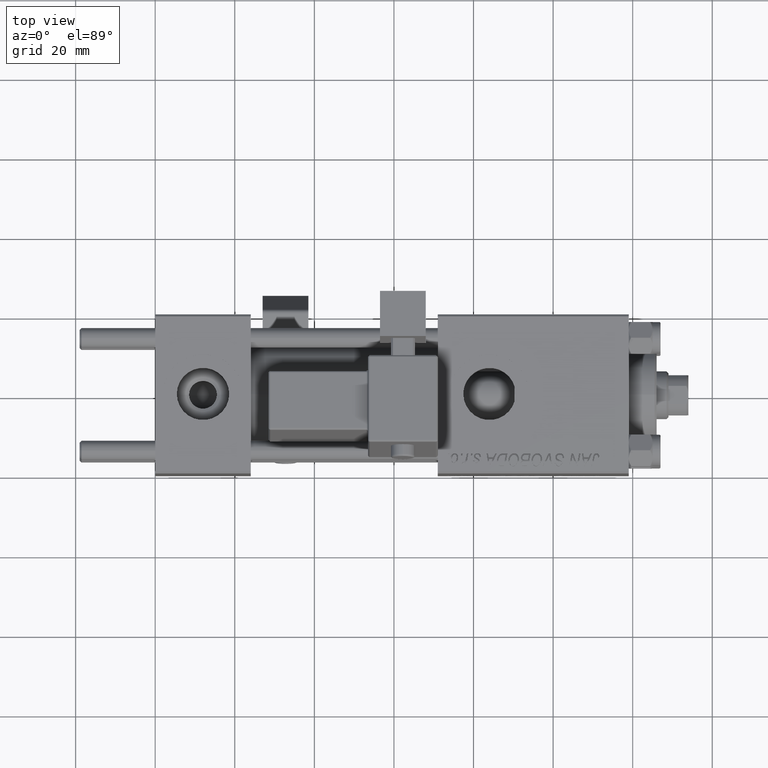
[diagram: clean part render]
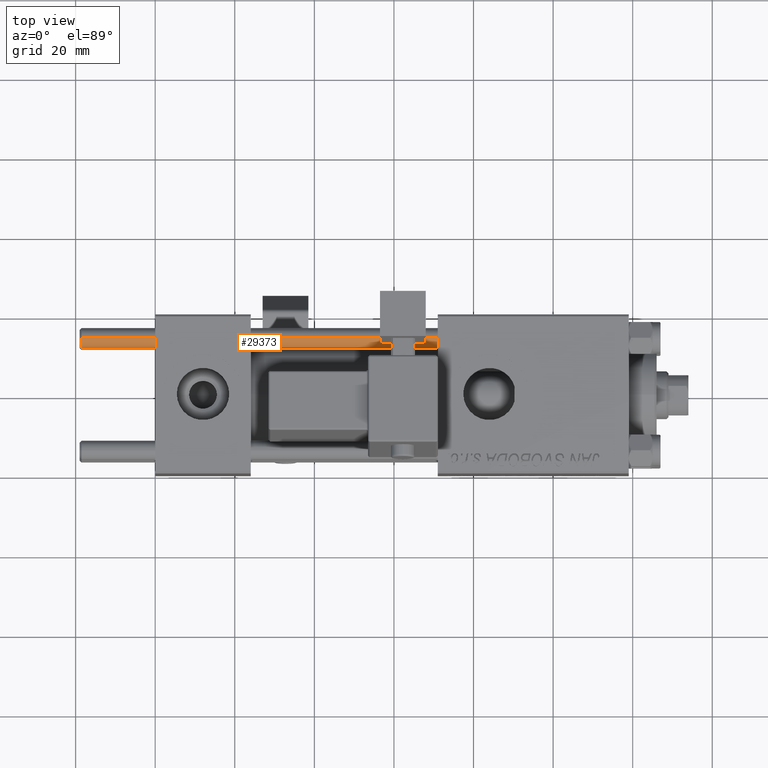
[diagram: same view with one face highlighted and labeled with its STEP entity id]
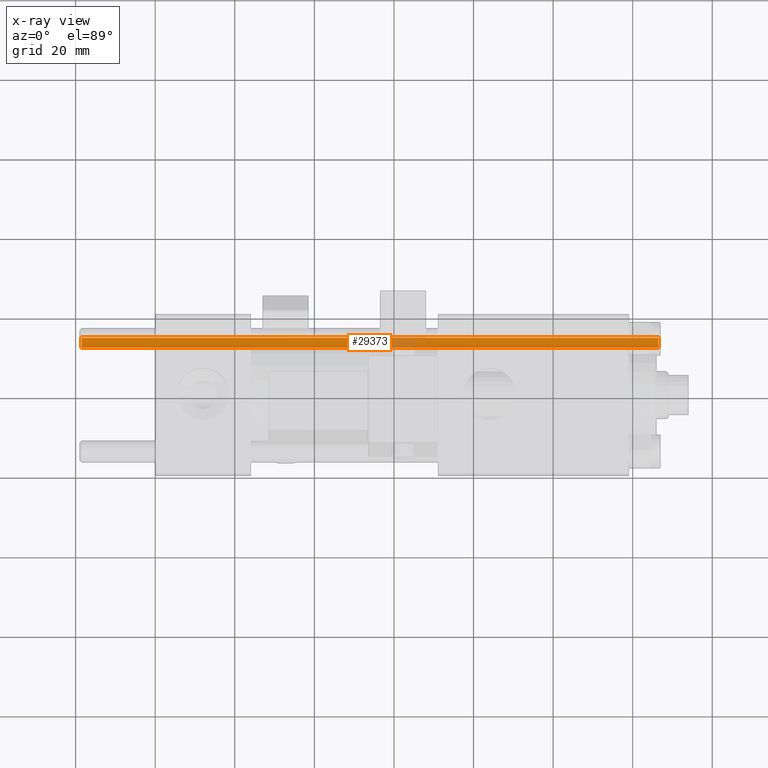
[diagram: x-ray of the same camera — body ghosted, the highlighted face saturated]
A machine part, top view. The second image highlights one B-rep face of the part: STEP entity #29373.
The next image is the same camera in x-ray: the body ghosted, the highlighted face saturated — about 4% of this face is hidden behind the body in this view.
In plain terms, the highlighted cylindrical surface (edge-blend (fillet) strip) has radius 2.5 mm, axis along (-1, -0, -0).
Its self-contained STEP definition (entity closure, byte-faithful):
#635 = ORIENTED_EDGE ( 'NONE', *, *, #24084, .T. ) ;
#786 = DIRECTION ( 'NONE',  ( -1.000000000000000000, 0.000000000000000000, 0.000000000000000000 ) ) ;
#2686 = VECTOR ( 'NONE', #35498, 1000.000000000000000 ) ;
#2826 = AXIS2_PLACEMENT_3D ( 'NONE', #5378, #49868, #34055 ) ;
#4716 = CARTESIAN_POINT ( 'NONE',  ( 0.000000000000000000, 0.000000000000000000, 146.0000000000000000 ) ) ;
#5378 = CARTESIAN_POINT ( 'NONE',  ( 0.000000000000000000, 0.000000000000000000, 145.5000000000000284 ) ) ;
#6456 = EDGE_CURVE ( 'NONE', #39188, #28678, #45576, .T. ) ;
#7448 = CARTESIAN_POINT ( 'NONE',  ( 2.500000000000000000, 3.061616997868383141E-16, 0.5000000000000559552 ) ) ;
#8676 = FACE_OUTER_BOUND ( 'NONE', #37579, .T. ) ;
#9233 = DIRECTION ( 'NONE',  ( -0.000000000000000000, -0.000000000000000000, -1.000000000000000000 ) ) ;
#9465 = CARTESIAN_POINT ( 'NONE',  ( 0.000000000000000000, 0.000000000000000000, 0.5000000000000559552 ) ) ;
#11729 = ORIENTED_EDGE ( 'NONE', *, *, #27668, .T. ) ;
#13632 = CIRCLE ( 'NONE', #50594, 2.500000000000000000 ) ;
#15239 = ORIENTED_EDGE ( 'NONE', *, *, #51996, .T. ) ;
#17116 = CARTESIAN_POINT ( 'NONE',  ( -2.500000000000000000, 0.000000000000000000, 0.5000000000000559552 ) ) ;
#17465 = CARTESIAN_POINT ( 'NONE',  ( 2.500000000000000000, 3.061616997868383141E-16, 145.5000000000000284 ) ) ;
#17943 = CARTESIAN_POINT ( 'NONE',  ( -2.500000000000000000, 0.000000000000000000, 145.5000000000000284 ) ) ;
#24084 = EDGE_CURVE ( 'NONE', #51754, #28678, #13632, .T. ) ;
#24096 = ORIENTED_EDGE ( 'NONE', *, *, #6456, .F. ) ;
#24726 = CYLINDRICAL_SURFACE ( 'NONE', #39077, 2.500000000000000000 ) ;
#25535 = CIRCLE ( 'NONE', #2826, 2.500000000000000000 ) ;
#27668 = EDGE_CURVE ( 'NONE', #39188, #31224, #25535, .T. ) ;
#27840 = LINE ( 'NONE', #47587, #2686 ) ;
#28270 = VECTOR ( 'NONE', #9233, 1000.000000000000000 ) ;
#28678 = VERTEX_POINT ( 'NONE', #7448 ) ;
#29373 = ADVANCED_FACE ( 'NONE', ( #8676 ), #24726, .T. ) ;
#31224 = VERTEX_POINT ( 'NONE', #17943 ) ;
#33950 = DIRECTION ( 'NONE',  ( 1.000000000000000000, 0.000000000000000000, 0.000000000000000000 ) ) ;
#34055 = DIRECTION ( 'NONE',  ( 1.000000000000000000, 0.000000000000000000, 0.000000000000000000 ) ) ;
#35498 = DIRECTION ( 'NONE',  ( -0.000000000000000000, -0.000000000000000000, -1.000000000000000000 ) ) ;
#36366 = CARTESIAN_POINT ( 'NONE',  ( 2.500000000000000000, 3.061616997868383141E-16, 146.0000000000000000 ) ) ;
#36847 = DIRECTION ( 'NONE',  ( -0.000000000000000000, -0.000000000000000000, -1.000000000000000000 ) ) ;
#37579 = EDGE_LOOP ( 'NONE', ( #24096, #11729, #15239, #635 ) ) ;
#39077 = AXIS2_PLACEMENT_3D ( 'NONE', #4716, #36847, #786 ) ;
#39188 = VERTEX_POINT ( 'NONE', #17465 ) ;
#41081 = DIRECTION ( 'NONE',  ( -0.000000000000000000, -0.000000000000000000, 1.000000000000000000 ) ) ;
#45576 = LINE ( 'NONE', #36366, #28270 ) ;
#47587 = CARTESIAN_POINT ( 'NONE',  ( -2.500000000000000000, 0.000000000000000000, 146.0000000000000000 ) ) ;
#49868 = DIRECTION ( 'NONE',  ( 0.000000000000000000, 0.000000000000000000, -1.000000000000000000 ) ) ;
#50594 = AXIS2_PLACEMENT_3D ( 'NONE', #9465, #41081, #33950 ) ;
#51754 = VERTEX_POINT ( 'NONE', #17116 ) ;
#51996 = EDGE_CURVE ( 'NONE', #31224, #51754, #27840, .T. ) ;